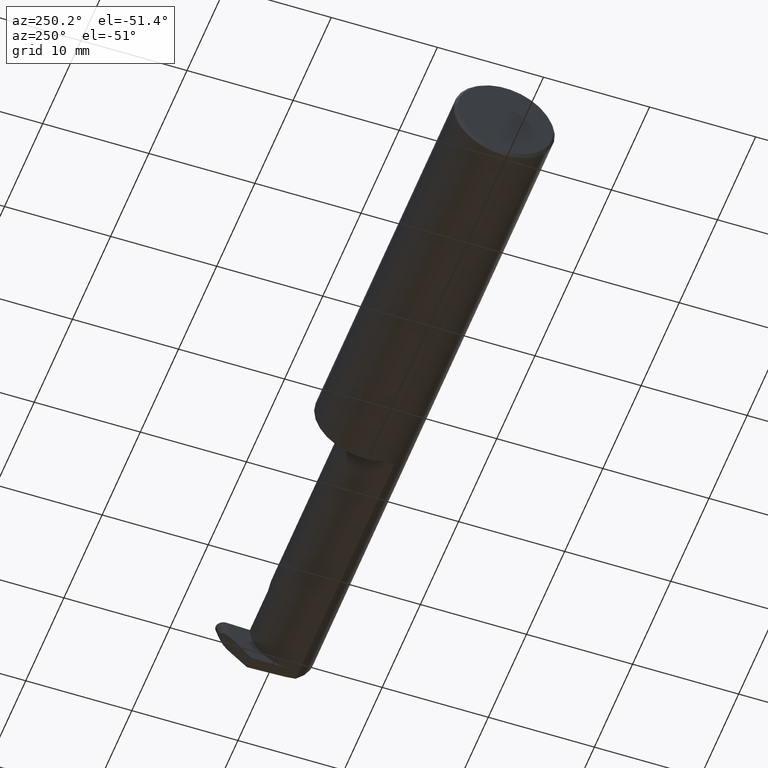
[diagram: clean part render]
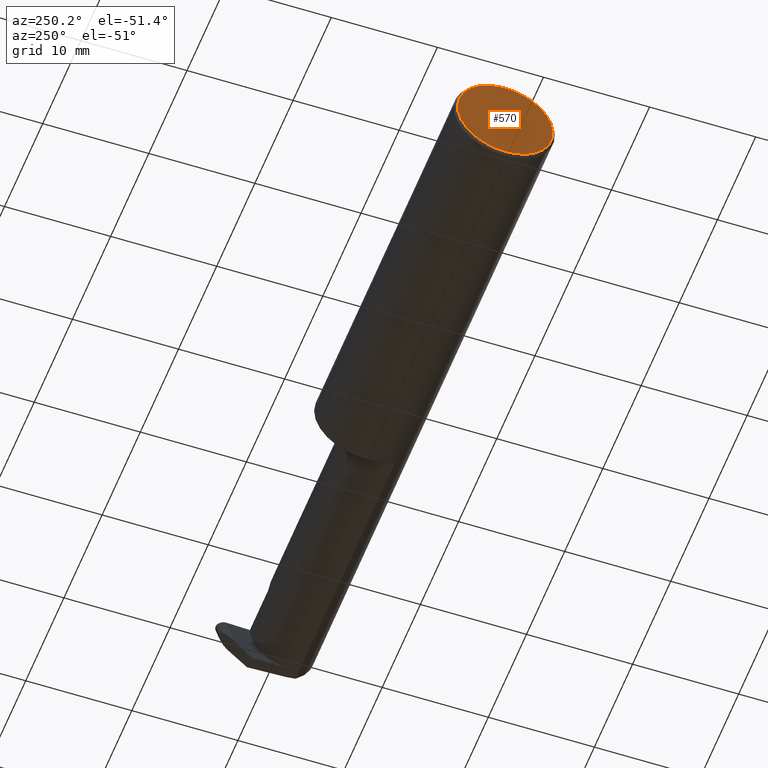
[diagram: same view with one face highlighted and labeled with its STEP entity id]
A machine part, auxiliary view. The second image highlights one B-rep face of the part: STEP entity #570.
In plain terms, the highlighted planar face has unit normal (1, 0, 0).
Its self-contained STEP definition (entity closure, byte-faithful):
#10 = CARTESIAN_POINT ( 'NONE',  ( 0.000000000000000000, -0.01880691362238934641, 0.1763499999999999235 ) ) ;
#15 = LINE ( 'NONE', #562, #669 ) ;
#16 = CIRCLE ( 'NONE', #270, 0.1773499999999999521 ) ;
#34 = CARTESIAN_POINT ( 'NONE',  ( 0.000000000000000000, 0.000000000000000000, 0.000000000000000000 ) ) ;
#37 = VERTEX_POINT ( 'NONE', #10 ) ;
#90 = PLANE ( 'NONE',  #625 ) ;
#104 = ORIENTED_EDGE ( 'NONE', *, *, #265, .T. ) ;
#105 = EDGE_CURVE ( 'NONE', #37, #552, #15, .T. ) ;
#153 = DIRECTION ( 'NONE',  ( 0.000000000000000000, 0.000000000000000000, -1.000000000000000000 ) ) ;
#162 = CARTESIAN_POINT ( 'NONE',  ( 0.000000000000000000, 0.000000000000000000, 0.000000000000000000 ) ) ;
#176 = AXIS2_PLACEMENT_3D ( 'NONE', #162, #668, #223 ) ;
#185 = FACE_OUTER_BOUND ( 'NONE', #651, .T. ) ;
#189 = CIRCLE ( 'NONE', #176, 0.1773499999999999521 ) ;
#201 = CARTESIAN_POINT ( 'NONE',  ( 0.000000000000000000, 0.000000000000000000, -0.1773499999999999521 ) ) ;
#223 = DIRECTION ( 'NONE',  ( 0.000000000000000000, 0.000000000000000000, -1.000000000000000000 ) ) ;
#239 = DIRECTION ( 'NONE',  ( 0.000000000000000000, 0.000000000000000000, -1.000000000000000000 ) ) ;
#259 = ORIENTED_EDGE ( 'NONE', *, *, #450, .T. ) ;
#265 = EDGE_CURVE ( 'NONE', #643, #37, #16, .T. ) ;
#270 = AXIS2_PLACEMENT_3D ( 'NONE', #34, #420, #153 ) ;
#292 = CARTESIAN_POINT ( 'NONE',  ( 0.000000000000000000, 0.000000000000000000, 0.000000000000000000 ) ) ;
#293 = DIRECTION ( 'NONE',  ( -0.000000000000000000, 1.000000000000000000, -0.000000000000000000 ) ) ;
#295 = DIRECTION ( 'NONE',  ( 1.000000000000000000, 0.000000000000000000, 0.000000000000000000 ) ) ;
#420 = DIRECTION ( 'NONE',  ( -1.000000000000000000, -0.000000000000000000, -0.000000000000000000 ) ) ;
#450 = EDGE_CURVE ( 'NONE', #552, #643, #189, .T. ) ;
#473 = CARTESIAN_POINT ( 'NONE',  ( 0.000000000000000000, 0.01880691362238934988, 0.1763499999999999235 ) ) ;
#552 = VERTEX_POINT ( 'NONE', #473 ) ;
#562 = CARTESIAN_POINT ( 'NONE',  ( 0.000000000000000000, 0.1873499999999998500, 0.1763499999999999235 ) ) ;
#570 = ADVANCED_FACE ( 'NONE', ( #185 ), #90, .F. ) ;
#625 = AXIS2_PLACEMENT_3D ( 'NONE', #292, #295, #239 ) ;
#627 = ORIENTED_EDGE ( 'NONE', *, *, #105, .T. ) ;
#643 = VERTEX_POINT ( 'NONE', #201 ) ;
#651 = EDGE_LOOP ( 'NONE', ( #627, #259, #104 ) ) ;
#668 = DIRECTION ( 'NONE',  ( -1.000000000000000000, -0.000000000000000000, -0.000000000000000000 ) ) ;
#669 = VECTOR ( 'NONE', #293, 39.37007874015748143 ) ;